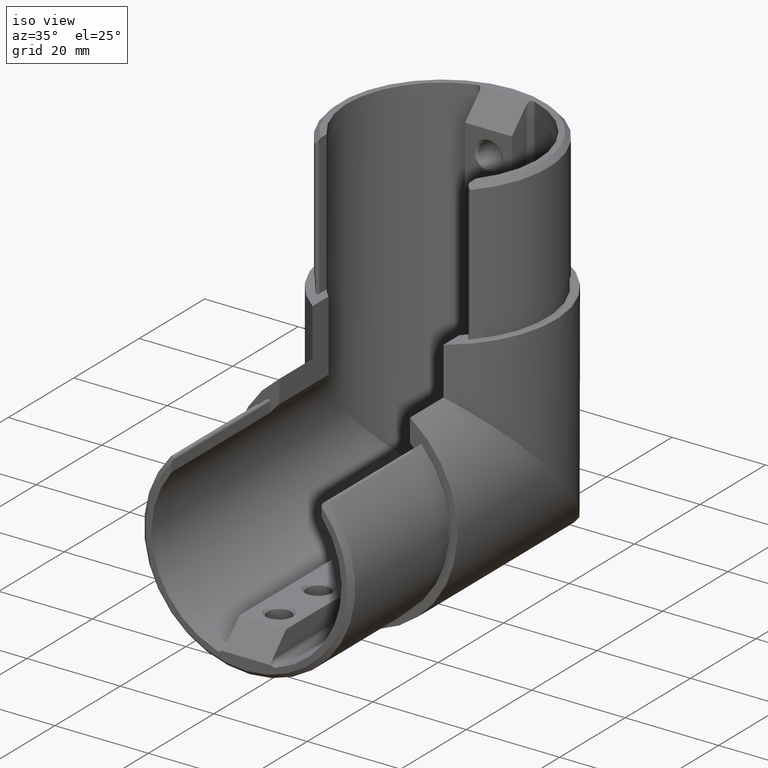
[diagram: clean part render]
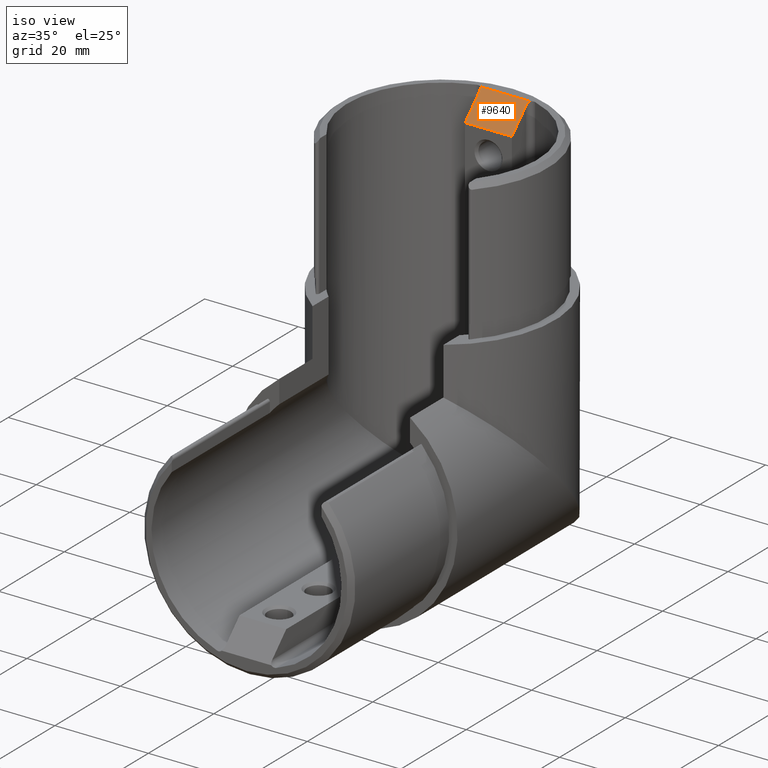
[diagram: same view with one face highlighted and labeled with its STEP entity id]
A machine part, iso view. The second image highlights one B-rep face of the part: STEP entity #9640.
In plain terms, the highlighted planar face has unit normal (-0, 0.7071, -0.7071).
Its self-contained STEP definition (entity closure, byte-faithful):
#199 = VERTEX_POINT ( 'NONE', #14787 ) ;
#1795 = EDGE_CURVE ( 'NONE', #4608, #20908, #22235, .T. ) ;
#2607 = CARTESIAN_POINT ( 'NONE',  ( 0.0000000000000000000, 48.95000000000001700, 59.85000000000000100 ) ) ;
#2787 = DIRECTION ( 'NONE',  ( 1.000000000000000000, 0.0000000000000000000, 0.0000000000000000000 ) ) ;
#3013 = CARTESIAN_POINT ( 'NONE',  ( -5.000000000000000000, 43.94999999998341900, 54.84999999991657700 ) ) ;
#3854 = CARTESIAN_POINT ( 'NONE',  ( -4.999999999997163200, 48.51331091496008700, 59.41331091495899100 ) ) ;
#4608 = VERTEX_POINT ( 'NONE', #24012 ) ;
#5392 = EDGE_CURVE ( 'NONE', #199, #24175, #9852, .T. ) ;
#6217 = CARTESIAN_POINT ( 'NONE',  ( 4.999999999961454800, -249983.4750000000100, -249972.5750006176800 ) ) ;
#6473 = VECTOR ( 'NONE', #2787, 1000.000000000000000 ) ;
#6760 = LINE ( 'NONE', #12843, #7648 ) ;
#6783 = EDGE_LOOP ( 'NONE', ( #16174, #11374, #12191, #9807, #7097, #11756 ) ) ;
#7052 = CARTESIAN_POINT ( 'NONE',  ( -4.999999999961455700, -249980.6619059114300, -249969.7619065291100 ) ) ;
#7097 = ORIENTED_EDGE ( 'NONE', *, *, #5392, .F. ) ;
#7163 = EDGE_CURVE ( 'NONE', #20908, #10743, #6760, .T. ) ;
#7181 = LINE ( 'NONE', #7052, #22251 ) ;
#7648 = VECTOR ( 'NONE', #19231, 1000.000000000000000 ) ;
#8635 = CARTESIAN_POINT ( 'NONE',  ( 5.000000000000000000, 43.94999999999999600, 54.84999999998763100 ) ) ;
#9492 = CARTESIAN_POINT ( 'NONE',  ( -5.101607917999126100, 48.76027307614906900, 59.66027307614857700 ) ) ;
#9618 = VECTOR ( 'NONE', #23821, 1000.000000000000000 ) ;
#9640 = ADVANCED_FACE ( 'NONE', ( #17915 ), #25239, .F. ) ;
#9807 = ORIENTED_EDGE ( 'NONE', *, *, #25093, .T. ) ;
#9852 = LINE ( 'NONE', #2607, #6473 ) ;
#9902 = EDGE_CURVE ( 'NONE', #10743, #11436, #7181, .T. ) ;
#10651 =( BOUNDED_CURVE ( )  B_SPLINE_CURVE ( 3, ( #24091, #12351, #22475, #24178 ),
 .UNSPECIFIED., .F., .F. ) 
 B_SPLINE_CURVE_WITH_KNOTS ( ( 4, 4 ),
 ( 4.712388980359855300, 5.493032545230442500 ),
 .UNSPECIFIED. ) 
 CURVE ( )  GEOMETRIC_REPRESENTATION_ITEM ( )  RATIONAL_B_SPLINE_CURVE ( ( 1.000000000000000000, 0.9498577826806491300, 0.9498577826806491300, 1.000000000000000000 ) ) 
 REPRESENTATION_ITEM ( '' )  );
#10743 = VERTEX_POINT ( 'NONE', #3013 ) ;
#11374 = ORIENTED_EDGE ( 'NONE', *, *, #7163, .F. ) ;
#11436 = VERTEX_POINT ( 'NONE', #19380 ) ;
#11692 = DIRECTION ( 'NONE',  ( -0.0000000000000000000, 0.7071067811874208700, -0.7071067811856741600 ) ) ;
#11756 = ORIENTED_EDGE ( 'NONE', *, *, #14239, .T. ) ;
#12191 = ORIENTED_EDGE ( 'NONE', *, *, #1795, .F. ) ;
#12351 = CARTESIAN_POINT ( 'NONE',  ( 4.999999999993368000, 48.51331091495099200, 59.41331091494989600 ) ) ;
#12843 = CARTESIAN_POINT ( 'NONE',  ( -5.000000000000000000, 43.94999999999999600, 54.84999999998763100 ) ) ;
#12991 = DIRECTION ( 'NONE',  ( -1.090111719270990200E-016, 0.7071067811856741600, 0.7071067811874208700 ) ) ;
#13506 = CARTESIAN_POINT ( 'NONE',  ( 0.0000000000000000000, 48.95000000000001700, 59.85000000000000100 ) ) ;
#13534 = AXIS2_PLACEMENT_3D ( 'NONE', #13506, #11692, #21564 ) ;
#14239 = EDGE_CURVE ( 'NONE', #199, #11436, #20020, .T. ) ;
#14787 = CARTESIAN_POINT ( 'NONE',  ( -5.289539215088972800, 48.95000000000001700, 59.85000000000000100 ) ) ;
#15486 = CARTESIAN_POINT ( 'NONE',  ( -5.289539215088972800, 48.95000000000001700, 59.85000000000000100 ) ) ;
#16117 = CARTESIAN_POINT ( 'NONE',  ( 5.289539215088972800, 48.95000000000001700, 59.85000000000000100 ) ) ;
#16174 = ORIENTED_EDGE ( 'NONE', *, *, #9902, .F. ) ;
#17387 = CARTESIAN_POINT ( 'NONE',  ( -5.000000000000000900, 48.24626320751690400, 59.14626320748084300 ) ) ;
#17915 = FACE_OUTER_BOUND ( 'NONE', #6783, .T. ) ;
#19231 = DIRECTION ( 'NONE',  ( -1.000000000000000000, 0.0000000000000000000, 0.0000000000000000000 ) ) ;
#19380 = CARTESIAN_POINT ( 'NONE',  ( -5.000000000000000900, 48.24626320751690400, 59.14626320748084300 ) ) ;
#20020 =( BOUNDED_CURVE ( )  B_SPLINE_CURVE ( 3, ( #15486, #9492, #3854, #17387 ),
 .UNSPECIFIED., .F., .F. ) 
 B_SPLINE_CURVE_WITH_KNOTS ( ( 4, 4 ),
 ( 0.7901527619491436300, 1.570796326805520100 ),
 .UNSPECIFIED. ) 
 CURVE ( )  GEOMETRIC_REPRESENTATION_ITEM ( )  RATIONAL_B_SPLINE_CURVE ( ( 1.000000000000000000, 0.9498577826824515800, 0.9498577826824515800, 1.000000000000000000 ) ) 
 REPRESENTATION_ITEM ( '' )  );
#20908 = VERTEX_POINT ( 'NONE', #8635 ) ;
#21564 = DIRECTION ( 'NONE',  ( 1.000000000000000000, 0.0000000000000000000, -0.0000000000000000000 ) ) ;
#22235 = LINE ( 'NONE', #6217, #9618 ) ;
#22251 = VECTOR ( 'NONE', #12991, 1000.000000000000000 ) ;
#22475 = CARTESIAN_POINT ( 'NONE',  ( 5.101607917995523600, 48.76027307614541700, 59.66027307614493900 ) ) ;
#23821 = DIRECTION ( 'NONE',  ( -1.090111719270990200E-016, -0.7071067811856741600, -0.7071067811874208700 ) ) ;
#24012 = CARTESIAN_POINT ( 'NONE',  ( 5.000000000000000900, 48.24626320751690400, 59.14626320745242100 ) ) ;
#24091 = CARTESIAN_POINT ( 'NONE',  ( 5.000000000000000900, 48.24626320751690400, 59.14626320745242100 ) ) ;
#24175 = VERTEX_POINT ( 'NONE', #16117 ) ;
#24178 = CARTESIAN_POINT ( 'NONE',  ( 5.289539215088972800, 48.95000000000001700, 59.85000000000000100 ) ) ;
#25093 = EDGE_CURVE ( 'NONE', #4608, #24175, #10651, .T. ) ;
#25239 = PLANE ( 'NONE',  #13534 ) ;